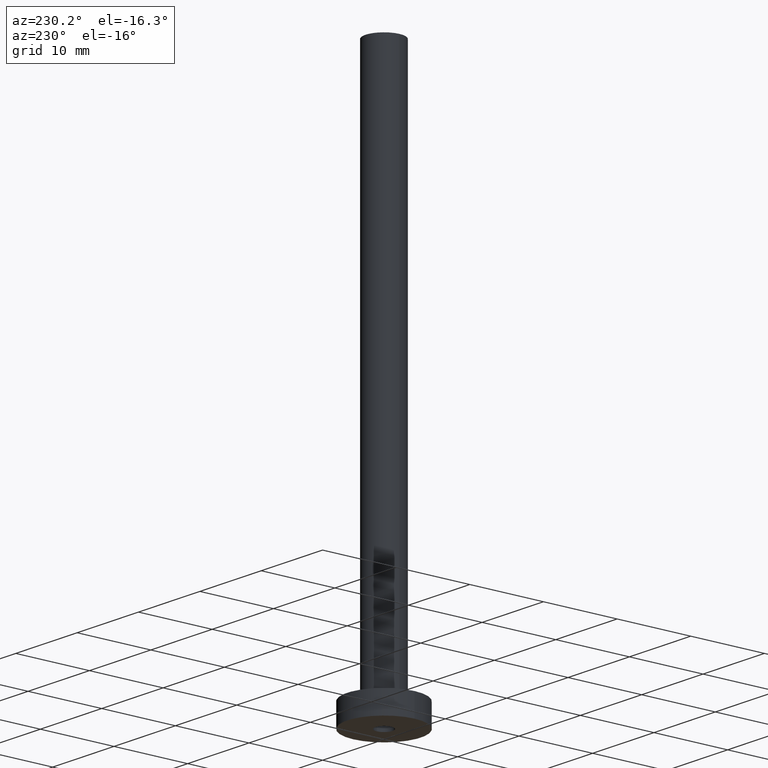
[diagram: clean part render]
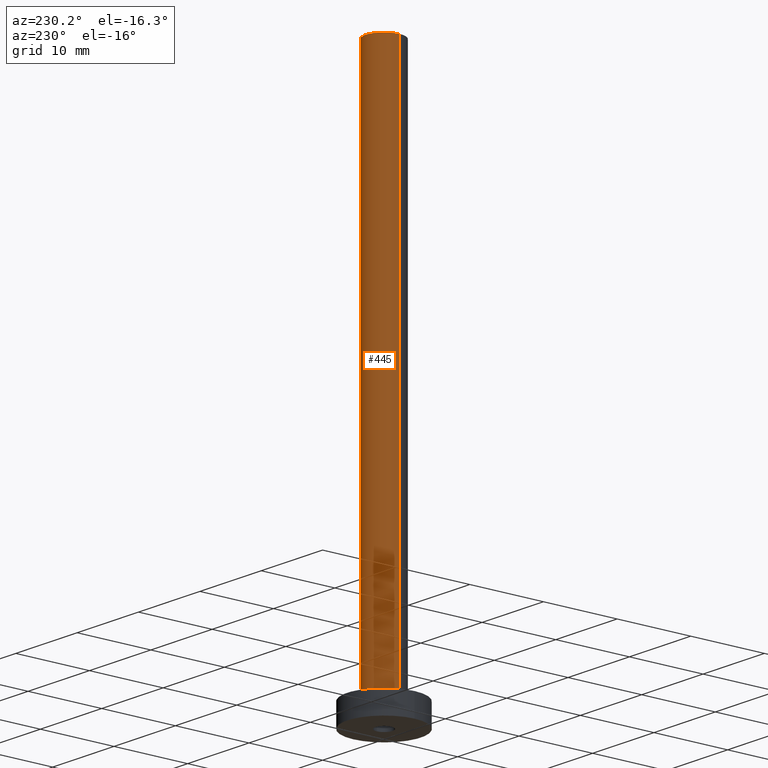
[diagram: same view with one face highlighted and labeled with its STEP entity id]
A machine part, auxiliary view. The second image highlights one B-rep face of the part: STEP entity #445.
In plain terms, the highlighted cylindrical surface (edge-blend (fillet) strip) has radius 2.5 mm, axis along (-0, -0, -1).
Its self-contained STEP definition (entity closure, byte-faithful):
#3 = CIRCLE ( 'NONE', #13, 2.500000000000000000 ) ;
#6 = CARTESIAN_POINT ( 'NONE',  ( -2.500000000000000000, 0.000000000000000000, 3.299999999999997158 ) ) ;
#7 = VERTEX_POINT ( 'NONE', #435 ) ;
#13 = AXIS2_PLACEMENT_3D ( 'NONE', #141, #461, #257 ) ;
#15 = VERTEX_POINT ( 'NONE', #6 ) ;
#38 = CARTESIAN_POINT ( 'NONE',  ( -2.500000000000000000, 0.000000000000000000, 75.00000000000001421 ) ) ;
#42 = EDGE_CURVE ( 'NONE', #352, #15, #210, .T. ) ;
#44 = VERTEX_POINT ( 'NONE', #443 ) ;
#58 = EDGE_LOOP ( 'NONE', ( #460, #186, #78, #399 ) ) ;
#77 = CARTESIAN_POINT ( 'NONE',  ( 0.000000000000000000, 0.000000000000000000, 75.00000000000001421 ) ) ;
#78 = ORIENTED_EDGE ( 'NONE', *, *, #42, .T. ) ;
#116 = DIRECTION ( 'NONE',  ( -0.000000000000000000, -0.000000000000000000, -1.000000000000000000 ) ) ;
#131 = LINE ( 'NONE', #406, #331 ) ;
#135 = DIRECTION ( 'NONE',  ( 1.000000000000000000, 0.000000000000000000, 0.000000000000000000 ) ) ;
#141 = CARTESIAN_POINT ( 'NONE',  ( 0.000000000000000000, 0.000000000000000000, 75.00000000000001421 ) ) ;
#176 = EDGE_CURVE ( 'NONE', #7, #352, #131, .T. ) ;
#186 = ORIENTED_EDGE ( 'NONE', *, *, #176, .T. ) ;
#207 = DIRECTION ( 'NONE',  ( -1.000000000000000000, 0.000000000000000000, 0.000000000000000000 ) ) ;
#210 = CIRCLE ( 'NONE', #383, 2.500000000000000000 ) ;
#257 = DIRECTION ( 'NONE',  ( 1.000000000000000000, 0.000000000000000000, 0.000000000000000000 ) ) ;
#283 = DIRECTION ( 'NONE',  ( -0.000000000000000000, -0.000000000000000000, -1.000000000000000000 ) ) ;
#284 = EDGE_CURVE ( 'NONE', #7, #44, #3, .T. ) ;
#296 = EDGE_CURVE ( 'NONE', #44, #15, #358, .T. ) ;
#326 = CARTESIAN_POINT ( 'NONE',  ( 2.500000000000000000, 3.061616997868383141E-16, 3.299999999999997158 ) ) ;
#331 = VECTOR ( 'NONE', #457, 1000.000000000000000 ) ;
#352 = VERTEX_POINT ( 'NONE', #326 ) ;
#358 = LINE ( 'NONE', #38, #414 ) ;
#381 = DIRECTION ( 'NONE',  ( 0.000000000000000000, 0.000000000000000000, 1.000000000000000000 ) ) ;
#383 = AXIS2_PLACEMENT_3D ( 'NONE', #446, #381, #135 ) ;
#390 = CYLINDRICAL_SURFACE ( 'NONE', #449, 2.500000000000000000 ) ;
#399 = ORIENTED_EDGE ( 'NONE', *, *, #296, .F. ) ;
#406 = CARTESIAN_POINT ( 'NONE',  ( 2.500000000000000000, 3.061616997868383141E-16, 75.00000000000001421 ) ) ;
#414 = VECTOR ( 'NONE', #283, 1000.000000000000000 ) ;
#426 = FACE_OUTER_BOUND ( 'NONE', #58, .T. ) ;
#435 = CARTESIAN_POINT ( 'NONE',  ( 2.500000000000000000, 3.061616997868383141E-16, 75.00000000000001421 ) ) ;
#443 = CARTESIAN_POINT ( 'NONE',  ( -2.500000000000000000, 0.000000000000000000, 75.00000000000001421 ) ) ;
#445 = ADVANCED_FACE ( 'NONE', ( #426 ), #390, .T. ) ;
#446 = CARTESIAN_POINT ( 'NONE',  ( 0.000000000000000000, 0.000000000000000000, 3.299999999999997158 ) ) ;
#449 = AXIS2_PLACEMENT_3D ( 'NONE', #77, #116, #207 ) ;
#457 = DIRECTION ( 'NONE',  ( -0.000000000000000000, -0.000000000000000000, -1.000000000000000000 ) ) ;
#460 = ORIENTED_EDGE ( 'NONE', *, *, #284, .F. ) ;
#461 = DIRECTION ( 'NONE',  ( 0.000000000000000000, 0.000000000000000000, 1.000000000000000000 ) ) ;